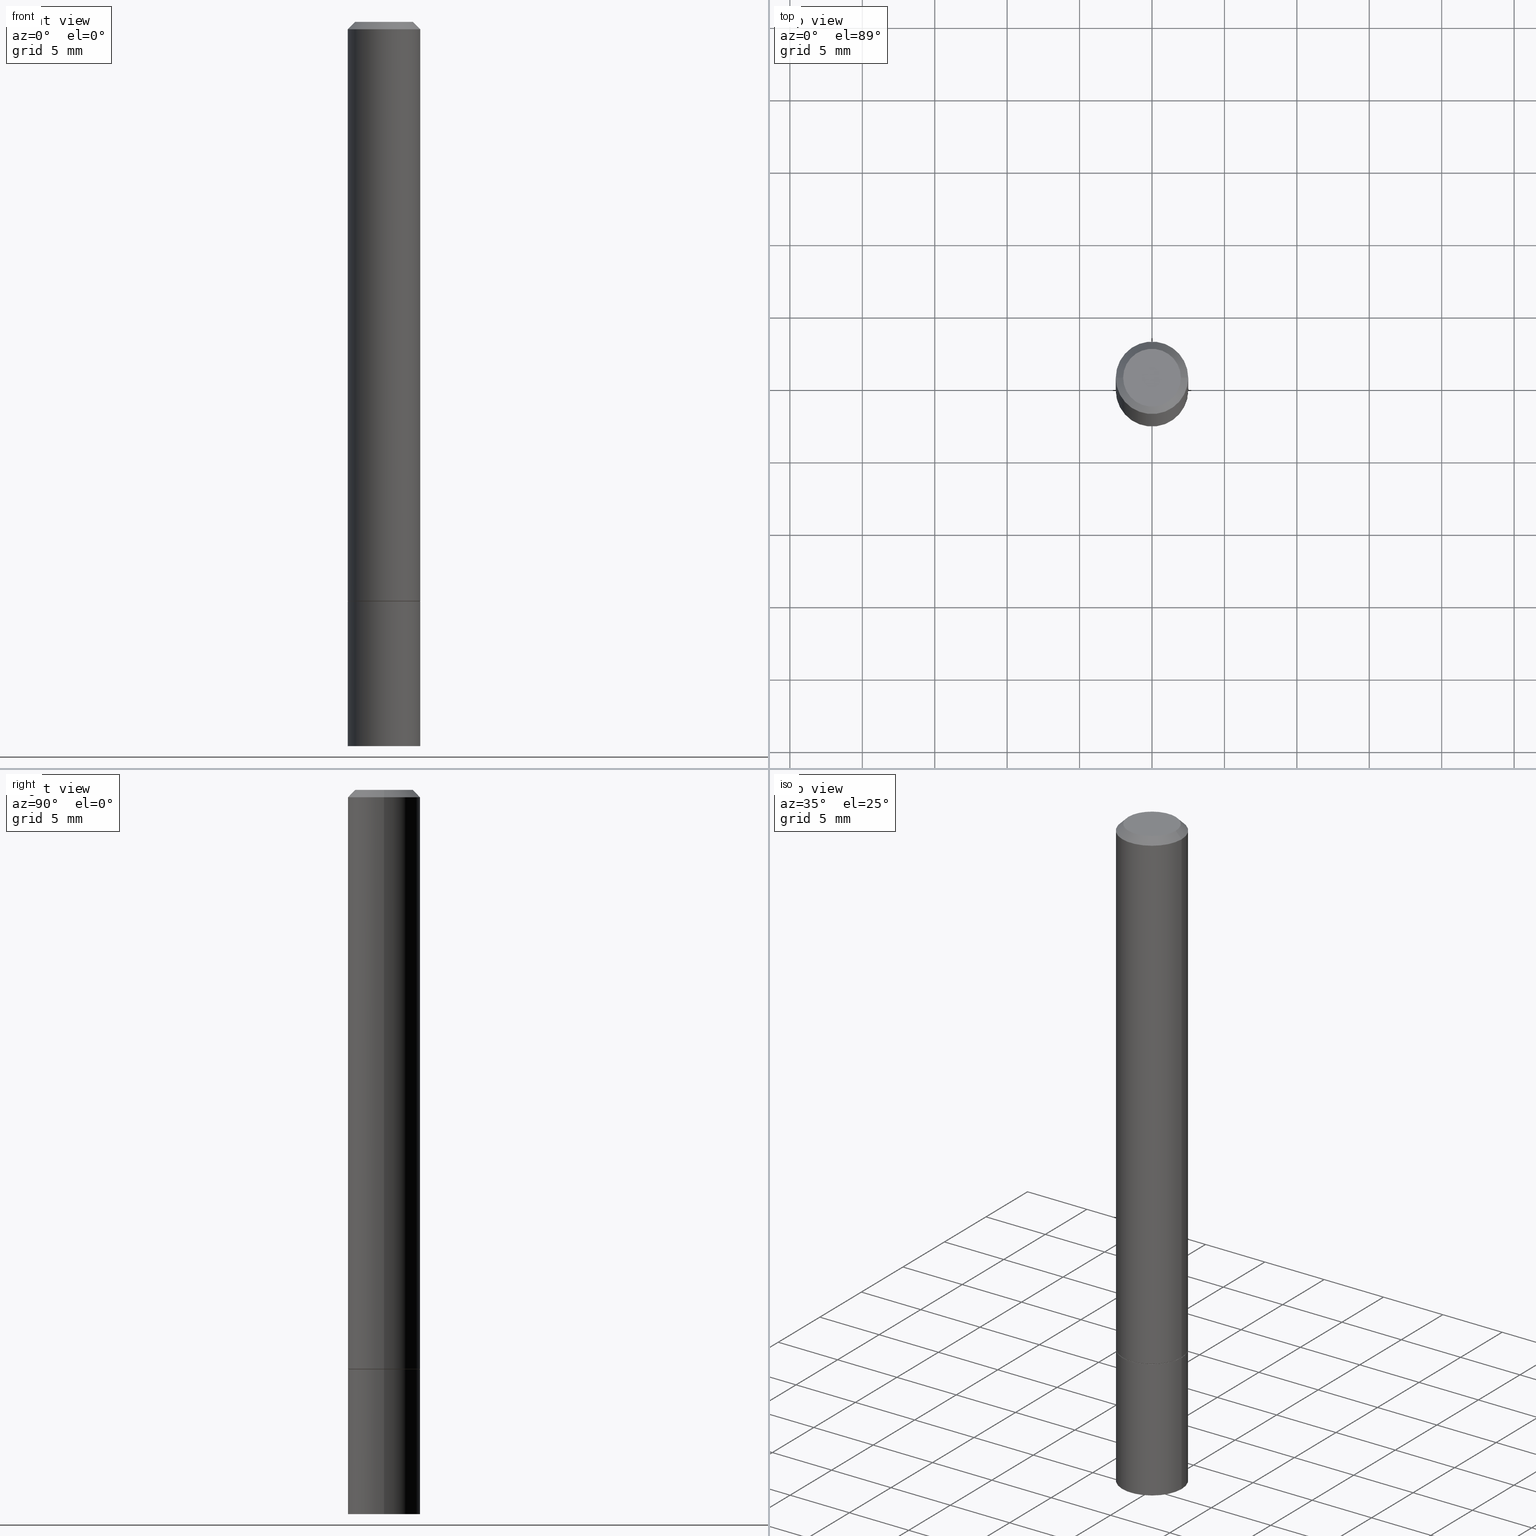
[diagram: canonical four-view strip — front | top / right | iso, engineering-drawing reading convention]
A machine part, canonical four-view strip (front | top / right | iso — engineering-drawing reading convention). The complete STEP part file that produces these views, byte-faithful:
ISO-10303-21;
HEADER;
FILE_DESCRIPTION (( 'STEP AP203' ),
    '1' );
FILE_NAME ('49144.STEP',
    '2024-02-28T15:52:22',
    ( '' ),
    ( '' ),
    'SwSTEP 2.0',
    'SolidWorks 2023',
    '' );
FILE_SCHEMA (( 'CONFIG_CONTROL_DESIGN' ));
ENDSEC;

DATA;
#1 = ORIENTED_EDGE ( 'NONE', *, *, #351, .F. ) ;
#2 = DIRECTION ( 'NONE',  ( 1.000000000000000000, -6.982962677686265922E-15, 0.000000000000000000 ) ) ;
#3 = PLANE ( 'NONE',  #279 ) ;
#4 = DIRECTION ( 'NONE',  ( 2.438088387897960049E-29, -3.491481338843145188E-15, -1.000000000000000000 ) ) ;
#5 = CIRCLE ( 'NONE', #317, 0.07844999999999982543 ) ;
#6 = EDGE_LOOP ( 'NONE', ( #310, #183, #138, #362 ) ) ;
#7 = DIRECTION ( 'NONE',  ( -1.000000000000000000, 6.982962677686265922E-15, -4.876176775795935793E-29 ) ) ;
#8 = DIRECTION ( 'NONE',  ( 2.445468806185136597E-29, -3.491481338843145583E-15, -1.000000000000000000 ) ) ;
#9 = DATE_TIME_ROLE ( 'creation_date' ) ;
#10 = CONICAL_SURFACE ( 'NONE', #22, 0.09844999999999980156, 0.7853981633974471688 ) ;
#11 = AXIS2_PLACEMENT_3D ( 'NONE', #220, #42, #19 ) ;
#12 = DIRECTION ( 'NONE',  ( 1.000000000000000000, -6.982962677686264344E-15, 0.000000000000000000 ) ) ;
#13 = CARTESIAN_POINT ( 'NONE',  ( 0.000000000000000000, 0.000000000000000000, 0.000000000000000000 ) ) ;
#14 = CARTESIAN_POINT ( 'NONE',  ( 4.890937612370278413E-31, -6.982962677686297772E-17, -0.02000000000000002123 ) ) ;
#15 = EDGE_CURVE ( 'NONE', #285, #82, #278, .T. ) ;
#16 = MECHANICAL_CONTEXT ( 'NONE', #313, 'mechanical' ) ;
#17 = ORIENTED_EDGE ( 'NONE', *, *, #309, .F. ) ;
#18 =( LENGTH_UNIT ( ) NAMED_UNIT ( * ) SI_UNIT ( $, .METRE. ) );
#19 = DIRECTION ( 'NONE',  ( 1.000000000000000000, -6.982962677686266711E-15, 4.876176775795936353E-29 ) ) ;
#20 = APPROVAL_STATUS ( 'not_yet_approved' ) ;
#21 = VERTEX_POINT ( 'NONE', #87 ) ;
#22 = AXIS2_PLACEMENT_3D ( 'NONE', #364, #8, #97 ) ;
#23 = PERSON_AND_ORGANIZATION_ROLE ( 'classification_officer' ) ;
#24 = AXIS2_PLACEMENT_3D ( 'NONE', #186, #47, #273 ) ;
#25 = ORIENTED_EDGE ( 'NONE', *, *, #100, .F. ) ;
#26 = ADVANCED_FACE ( 'NONE', ( #245 ), #10, .T. ) ;
#27 = PLANE ( 'NONE',  #61 ) ;
#28 = PERSON_AND_ORGANIZATION ( #358, #366 ) ;
#29 = CARTESIAN_POINT ( 'NONE',  ( 3.851124275980353356E-29, -5.498384812410186155E-15, -1.574800000000000200 ) ) ;
#30 = APPLICATION_CONTEXT ( 'configuration controlled 3d designs of mechanical parts and assemblies' ) ;
#31 = DIRECTION ( 'NONE',  ( 1.000000000000000000, -6.982962677686265922E-15, 0.000000000000000000 ) ) ;
#32 = VECTOR ( 'NONE', #266, 39.37007874015748143 ) ;
#33 = CARTESIAN_POINT ( 'NONE',  ( -0.09844999999999999585, -2.082832155568282351E-15, -1.573800000000000088 ) ) ;
#34 = EDGE_CURVE ( 'NONE', #112, #235, #303, .T. ) ;
#35 = FACE_OUTER_BOUND ( 'NONE', #148, .T. ) ;
#36 = CARTESIAN_POINT ( 'NONE',  ( -0.09844999999999999585, 6.995293233558186035E-16, -4.842691596355954042E-30 ) ) ;
#37 = DIRECTION ( 'NONE',  ( -2.445468806185136597E-29, 3.491481338843145583E-15, 1.000000000000000000 ) ) ;
#38 = AXIS2_PLACEMENT_3D ( 'NONE', #347, #64, #327 ) ;
#39 = ORIENTED_EDGE ( 'NONE', *, *, #69, .F. ) ;
#40 = APPROVAL ( #219, 'UNSPECIFIED' ) ;
#41 = APPLICATION_PROTOCOL_DEFINITION ( 'international standard', 'config_control_design', 1994, #30 ) ;
#42 = DIRECTION ( 'NONE',  ( -2.445468806185136597E-29, 3.491481338843145583E-15, 1.000000000000000000 ) ) ;
#43 = CONICAL_SURFACE ( 'NONE', #305, 0.09844999999999980156, 0.7853981633974471688 ) ;
#44 =( CONVERSION_BASED_UNIT ( 'INCH', #323 ) LENGTH_UNIT ( ) NAMED_UNIT ( #115 ) );
#45 = CC_DESIGN_PERSON_AND_ORGANIZATION_ASSIGNMENT ( #165, #277, ( #258 ) ) ;
#46 = DIRECTION ( 'NONE',  ( 1.000000000000000000, -6.982962677686266711E-15, 4.876176775795935793E-29 ) ) ;
#47 = DIRECTION ( 'NONE',  ( 0.000000000000000000, 0.000000000000000000, 1.000000000000000000 ) ) ;
#48 = APPROVAL_DATE_TIME ( #329, #163 ) ;
#49 = DIRECTION ( 'NONE',  ( -2.445468806185136597E-29, 3.491481338843145583E-15, 1.000000000000000000 ) ) ;
#50 = CC_DESIGN_APPROVAL ( #40, ( #243 ) ) ;
#51 = COORDINATED_UNIVERSAL_TIME_OFFSET ( 5, 0, .BEHIND. ) ;
#52 = ORIENTED_EDGE ( 'NONE', *, *, #291, .T. ) ;
#53 = PERSON_AND_ORGANIZATION_ROLE ( 'design_supplier' ) ;
#54 = CIRCLE ( 'NONE', #263, 0.09844999999999999585 ) ;
#55 = EDGE_CURVE ( 'NONE', #285, #308, #315, .T. ) ;
#56 = ORIENTED_EDGE ( 'NONE', *, *, #343, .T. ) ;
#57 = CARTESIAN_POINT ( 'NONE',  ( 0.09744999999999999496, -6.178874525350711912E-15, -1.574799999999999756 ) ) ;
#58 = DIRECTION ( 'NONE',  ( -2.445468806185136597E-29, 3.491481338843145583E-15, 1.000000000000000000 ) ) ;
#59 = DIRECTION ( 'NONE',  ( 1.000000000000000000, -6.982962677686265922E-15, 0.000000000000000000 ) ) ;
#60 = ADVANCED_FACE ( 'NONE', ( #141 ), #27, .F. ) ;
#61 = AXIS2_PLACEMENT_3D ( 'NONE', #215, #256, #142 ) ;
#62 = LINE ( 'NONE', #122, #32 ) ;
#63 = LOCAL_TIME ( 10, 52, 22.00000000000000000, #128 ) ;
#64 = DIRECTION ( 'NONE',  ( -2.445468806185136597E-29, 3.491481338843145583E-15, 1.000000000000000000 ) ) ;
#65 = EDGE_LOOP ( 'NONE', ( #176, #80 ) ) ;
#66 = APPROVAL_PERSON_ORGANIZATION ( #133, #40, #131 ) ;
#67 = CC_DESIGN_APPROVAL ( #265, ( #289 ) ) ;
#68 = ORIENTED_EDGE ( 'NONE', *, *, #55, .T. ) ;
#69 = EDGE_CURVE ( 'NONE', #126, #335, #240, .T. ) ;
#70 = APPROVAL_STATUS ( 'not_yet_approved' ) ;
#71 = LINE ( 'NONE', #269, #118 ) ;
#72 = VECTOR ( 'NONE', #181, 39.37007874015748143 ) ;
#73 = LOCAL_TIME ( 10, 52, 22.00000000000000000, #51 ) ;
#74 = FACE_OUTER_BOUND ( 'NONE', #254, .T. ) ;
#75 = CYLINDRICAL_SURFACE ( 'NONE', #171, 0.09844999999999999585 ) ;
#76 = CARTESIAN_POINT ( 'NONE',  ( 3.851124275980352235E-29, -5.498384812410185366E-15, -1.574799999999999756 ) ) ;
#77 = DIRECTION ( 'NONE',  ( 1.000000000000000000, -6.982962677686266711E-15, 4.876176775795936353E-29 ) ) ;
#78 = CARTESIAN_POINT ( 'NONE',  ( 0.09844999999999999585, -7.560453691130944267E-15, -1.968500000000000139 ) ) ;
#79 = CONICAL_SURFACE ( 'NONE', #251, 0.09744999999999999496, 0.7853981633975507526 ) ;
#80 = ORIENTED_EDGE ( 'NONE', *, *, #34, .T. ) ;
#81 = DATE_AND_TIME ( #197, #349 ) ;
#82 = VERTEX_POINT ( 'NONE', #287 ) ;
#83 = EDGE_CURVE ( 'NONE', #235, #112, #223, .T. ) ;
#84 = DATE_TIME_ROLE ( 'classification_date' ) ;
#85 = ORIENTED_EDGE ( 'NONE', *, *, #111, .F. ) ;
#86 = AXIS2_PLACEMENT_3D ( 'NONE', #271, #299, #137 ) ;
#87 = CARTESIAN_POINT ( 'NONE',  ( 0.09844999999999980156, -7.452456546574689274E-16, -0.02000000000000002123 ) ) ;
#88 = ORIENTED_EDGE ( 'NONE', *, *, #178, .T. ) ;
#89 = DIRECTION ( 'NONE',  ( -2.445468806185136597E-29, 3.491481338843145583E-15, 1.000000000000000000 ) ) ;
#90 = ADVANCED_BREP_SHAPE_REPRESENTATION ( '49144', ( #275, #152, #24 ), #337 ) ;
#91 = CYLINDRICAL_SURFACE ( 'NONE', #322, 0.09844999999999991258 ) ;
#92 = CARTESIAN_POINT ( 'NONE',  ( -0.09844999999999999585, -5.486153590605640426E-15, -1.968500000000000139 ) ) ;
#93 = CC_DESIGN_DATE_AND_TIME_ASSIGNMENT ( #81, #84, ( #289 ) ) ;
#94 = DIRECTION ( 'NONE',  ( -2.445468806185136597E-29, 3.491481338843145583E-15, 1.000000000000000000 ) ) ;
#95 =( NAMED_UNIT ( * ) SI_UNIT ( $, .STERADIAN. ) SOLID_ANGLE_UNIT ( ) );
#96 = APPROVAL_PERSON_ORGANIZATION ( #161, #163, #300 ) ;
#97 = DIRECTION ( 'NONE',  ( -1.000000000000000000, 6.982962677686266711E-15, 0.000000000000000000 ) ) ;
#98 = UNCERTAINTY_MEASURE_WITH_UNIT (LENGTH_MEASURE( 1.000000000000000082E-05 ), #44, 'distance_accuracy_value', 'NONE');
#99 = DIRECTION ( 'NONE',  ( -2.445468806185136597E-29, 3.491481338843145583E-15, 1.000000000000000000 ) ) ;
#100 = EDGE_CURVE ( 'NONE', #306, #127, #54, .T. ) ;
#101 = DIRECTION ( 'NONE',  ( -1.000000000000000000, 6.982962677686266711E-15, 0.000000000000000000 ) ) ;
#102 = CALENDAR_DATE ( 2024, 28, 2 ) ;
#103 = CARTESIAN_POINT ( 'NONE',  ( 3.851124275980352235E-29, -5.498384812410185366E-15, -1.574799999999999756 ) ) ;
#104 = AXIS2_PLACEMENT_3D ( 'NONE', #174, #348, #290 ) ;
#105 = CIRCLE ( 'NONE', #297, 0.09844999999999980156 ) ;
#106 = ORIENTED_EDGE ( 'NONE', *, *, #34, .F. ) ;
#107 = VERTEX_POINT ( 'NONE', #33 ) ;
#108 = VECTOR ( 'NONE', #320, 39.37007874015748143 ) ;
#109 = AXIS2_PLACEMENT_3D ( 'NONE', #103, #224, #227 ) ;
#110 = ORIENTED_EDGE ( 'NONE', *, *, #15, .F. ) ;
#111 = EDGE_CURVE ( 'NONE', #308, #21, #191, .T. ) ;
#112 = VERTEX_POINT ( 'NONE', #353 ) ;
#113 = PERSON_AND_ORGANIZATION ( #358, #366 ) ;
#114 = ORIENTED_EDGE ( 'NONE', *, *, #55, .F. ) ;
#115 = DIMENSIONAL_EXPONENTS ( 1.000000000000000000, 0.000000000000000000, 0.000000000000000000, 0.000000000000000000, 0.000000000000000000, 0.000000000000000000, 0.000000000000000000 ) ;
#116 = ORIENTED_EDGE ( 'NONE', *, *, #231, .F. ) ;
#117 = AXIS2_PLACEMENT_3D ( 'NONE', #292, #58, #147 ) ;
#118 = VECTOR ( 'NONE', #247, 39.37007874015748143 ) ;
#119 = ORIENTED_EDGE ( 'NONE', *, *, #178, .F. ) ;
#120 = CARTESIAN_POINT ( 'NONE',  ( 5.478134220644863581E-16, 0.07844999999999982543, -2.739067110322441651E-16 ) ) ;
#121 = ADVANCED_FACE ( 'NONE', ( #249 ), #166, .T. ) ;
#122 = CARTESIAN_POINT ( 'NONE',  ( 0.09844999999999980156, -7.452456546574689274E-16, -0.02000000000000002123 ) ) ;
#123 = DIRECTION ( 'NONE',  ( -2.445468806185136597E-29, 3.491481338843145583E-15, 1.000000000000000000 ) ) ;
#124 = ADVANCED_FACE ( 'NONE', ( #298 ), #43, .T. ) ;
#125 = CARTESIAN_POINT ( 'NONE',  ( -0.09744999999999999496, -4.805960916411968264E-15, -1.574799999999999756 ) ) ;
#126 = VERTEX_POINT ( 'NONE', #160 ) ;
#127 = VERTEX_POINT ( 'NONE', #78 ) ;
#128 = COORDINATED_UNIVERSAL_TIME_OFFSET ( 5, 0, .BEHIND. ) ;
#129 = EDGE_CURVE ( 'NONE', #127, #235, #71, .T. ) ;
#130 = APPROVAL_PERSON_ORGANIZATION ( #304, #265, #143 ) ;
#131 = APPROVAL_ROLE ( '' ) ;
#132 = DIRECTION ( 'NONE',  ( -2.445468806185136597E-29, 3.491481338843145583E-15, 1.000000000000000000 ) ) ;
#133 = PERSON_AND_ORGANIZATION ( #358, #366 ) ;
#134 = LINE ( 'NONE', #272, #182 ) ;
#135 = AXIS2_PLACEMENT_3D ( 'NONE', #288, #123, #31 ) ;
#136 = CC_DESIGN_DATE_AND_TIME_ASSIGNMENT ( #222, #9, ( #243 ) ) ;
#137 = DIRECTION ( 'NONE',  ( 1.000000000000000000, -6.982962677686265922E-15, 0.000000000000000000 ) ) ;
#138 = ORIENTED_EDGE ( 'NONE', *, *, #139, .T. ) ;
#139 = EDGE_CURVE ( 'NONE', #335, #201, #134, .T. ) ;
#140 = AXIS2_PLACEMENT_3D ( 'NONE', #13, #325, #46 ) ;
#141 = FACE_OUTER_BOUND ( 'NONE', #331, .T. ) ;
#142 = DIRECTION ( 'NONE',  ( 1.000000000000000000, -6.982962677686265922E-15, 4.876176775795935793E-29 ) ) ;
#143 = APPROVAL_ROLE ( '' ) ;
#144 = DIRECTION ( 'NONE',  ( -2.445468806185136597E-29, 3.491481338843145583E-15, 1.000000000000000000 ) ) ;
#145 = AXIS2_PLACEMENT_3D ( 'NONE', #153, #341, #318 ) ;
#146 = PRODUCT_RELATED_PRODUCT_CATEGORY ( 'detail', '', ( #216 ) ) ;
#147 = DIRECTION ( 'NONE',  ( 1.000000000000000000, -6.982962677686264344E-15, 0.000000000000000000 ) ) ;
#148 = EDGE_LOOP ( 'NONE', ( #338, #196, #116, #114 ) ) ;
#149 = CARTESIAN_POINT ( 'NONE',  ( 0.09844999999999999585, -6.185857488028398715E-15, -1.574800000000000200 ) ) ;
#150 = CARTESIAN_POINT ( 'NONE',  ( 3.848678807174168313E-29, -5.494893331071342359E-15, -1.573800000000000088 ) ) ;
#151 = ADVANCED_FACE ( 'NONE', ( #250 ), #162, .T. ) ;
#152 = MANIFOLD_SOLID_BREP ( 'Body-Move/Copy2[2]', #365 ) ;
#153 = CARTESIAN_POINT ( 'NONE',  ( 6.874726756182609764E-16, 0.09844999999999311247, -1.968500000000000361 ) ) ;
#154 = EDGE_LOOP ( 'NONE', ( #295, #199, #267, #257 ) ) ;
#155 = COORDINATED_UNIVERSAL_TIME_OFFSET ( 5, 0, .BEHIND. ) ;
#156 = CC_DESIGN_PERSON_AND_ORGANIZATION_ASSIGNMENT ( #350, #326, ( #243 ) ) ;
#157 = APPLICATION_PROTOCOL_DEFINITION ( 'international standard', 'config_control_design', 1994, #313 ) ;
#158 = CC_DESIGN_APPROVAL ( #163, ( #258 ) ) ;
#159 = CARTESIAN_POINT ( 'NONE',  ( 4.890937612370278413E-31, -6.982962677686297772E-17, -0.02000000000000002123 ) ) ;
#160 = CARTESIAN_POINT ( 'NONE',  ( 0.07844999999999982543, -6.417258612913221441E-16, 4.159044147803931210E-30 ) ) ;
#161 = PERSON_AND_ORGANIZATION ( #358, #366 ) ;
#162 = CYLINDRICAL_SURFACE ( 'NONE', #140, 0.09844999999999991258 ) ;
#163 = APPROVAL ( #70, 'UNSPECIFIED' ) ;
#164 = EDGE_LOOP ( 'NONE', ( #359, #172, #233, #85 ) ) ;
#165 = PERSON_AND_ORGANIZATION ( #358, #366 ) ;
#166 = CYLINDRICAL_SURFACE ( 'NONE', #11, 0.09844999999999999585 ) ;
#167 = CIRCLE ( 'NONE', #38, 0.09844999999999980156 ) ;
#168 = PRODUCT_DEFINITION_SHAPE ( 'NONE', 'NONE',  #243 ) ;
#169 = CC_DESIGN_PERSON_AND_ORGANIZATION_ASSIGNMENT ( #113, #23, ( #289 ) ) ;
#170 = ORIENTED_EDGE ( 'NONE', *, *, #111, .T. ) ;
#171 = AXIS2_PLACEMENT_3D ( 'NONE', #330, #49, #77 ) ;
#172 = ORIENTED_EDGE ( 'NONE', *, *, #190, .T. ) ;
#173 = EDGE_LOOP ( 'NONE', ( #39, #236, #56, #346 ) ) ;
#174 = CARTESIAN_POINT ( 'NONE',  ( 0.000000000000000000, 0.000000000000000000, 0.000000000000000000 ) ) ;
#175 = PLANE ( 'NONE',  #246 ) ;
#176 = ORIENTED_EDGE ( 'NONE', *, *, #83, .T. ) ;
#177 = CIRCLE ( 'NONE', #361, 0.09844999999999999585 ) ;
#178 = EDGE_CURVE ( 'NONE', #82, #285, #200, .T. ) ;
#179 = DIRECTION ( 'NONE',  ( -1.000000000000000000, 6.982962677686265922E-15, -4.876176775795935793E-29 ) ) ;
#180 = FACE_OUTER_BOUND ( 'NONE', #228, .T. ) ;
#181 = DIRECTION ( 'NONE',  ( -2.445468806185136877E-29, 3.491481338843145188E-15, 1.000000000000000000 ) ) ;
#182 = VECTOR ( 'NONE', #188, 39.37007874015748143 ) ;
#183 = ORIENTED_EDGE ( 'NONE', *, *, #294, .F. ) ;
#184 = ORIENTED_EDGE ( 'NONE', *, *, #207, .F. ) ;
#185 = ADVANCED_FACE ( 'NONE', ( #328 ), #75, .T. ) ;
#186 = CARTESIAN_POINT ( 'NONE',  ( 0.000000000000000000, 0.000000000000000000, 0.000000000000000000 ) ) ;
#187 = AXIS2_PLACEMENT_3D ( 'NONE', #286, #94, #211 ) ;
#188 = DIRECTION ( 'NONE',  ( -0.7071067811865466846, 2.468850131082247989E-15, -0.7071067811865483499 ) ) ;
#189 = CARTESIAN_POINT ( 'NONE',  ( -0.07844999999999982543, 5.827282354529176128E-16, -3.953055038153092165E-30 ) ) ;
#190 = EDGE_CURVE ( 'NONE', #107, #201, #193, .T. ) ;
#191 = LINE ( 'NONE', #355, #208 ) ;
#192 = PERSON_AND_ORGANIZATION_ROLE ( 'design_owner' ) ;
#193 = LINE ( 'NONE', #301, #230 ) ;
#194 = DATE_AND_TIME ( #307, #73 ) ;
#195 = AXIS2_PLACEMENT_3D ( 'NONE', #29, #144, #324 ) ;
#196 = ORIENTED_EDGE ( 'NONE', *, *, #309, .T. ) ;
#197 = CALENDAR_DATE ( 2024, 28, 2 ) ;
#198 = EDGE_LOOP ( 'NONE', ( #363, #52, #170, #314 ) ) ;
#199 = ORIENTED_EDGE ( 'NONE', *, *, #207, .T. ) ;
#200 = CIRCLE ( 'NONE', #109, 0.09744999999999999496 ) ;
#201 = VERTEX_POINT ( 'NONE', #311 ) ;
#202 = ADVANCED_FACE ( 'NONE', ( #35 ), #213, .T. ) ;
#203 = DIRECTION ( 'NONE',  ( 1.000000000000000000, -6.982962677686265922E-15, 0.000000000000000000 ) ) ;
#204 = FACE_OUTER_BOUND ( 'NONE', #242, .T. ) ;
#205 = CARTESIAN_POINT ( 'NONE',  ( 4.813905344975441835E-29, -6.872981015512731707E-15, -1.968500000000000139 ) ) ;
#206 = FACE_OUTER_BOUND ( 'NONE', #198, .T. ) ;
#207 = EDGE_CURVE ( 'NONE', #306, #112, #244, .T. ) ;
#208 = VECTOR ( 'NONE', #332, 39.37007874015748143 ) ;
#209 = CARTESIAN_POINT ( 'NONE',  ( 0.000000000000000000, 0.000000000000000000, 0.000000000000000000 ) ) ;
#210 = CARTESIAN_POINT ( 'NONE',  ( 0.09744999999999999496, -6.178874525350711912E-15, -1.574799999999999756 ) ) ;
#211 = DIRECTION ( 'NONE',  ( 1.000000000000000000, -6.982962677686264344E-15, 0.000000000000000000 ) ) ;
#212 = CLOSED_SHELL ( 'NONE', ( #185, #221, #255, #121 ) ) ;
#213 = CONICAL_SURFACE ( 'NONE', #117, 0.09744999999999999496, 0.7853981633975507526 ) ;
#214 =( NAMED_UNIT ( * ) PLANE_ANGLE_UNIT ( ) SI_UNIT ( $, .RADIAN. ) );
#215 = CARTESIAN_POINT ( 'NONE',  ( 3.851124275980352235E-29, -5.498384812410185366E-15, -1.574799999999999756 ) ) ;
#216 = PRODUCT ( '49144', '49144', '', ( #16 ) ) ;
#217 = APPROVAL_DATE_TIME ( #248, #40 ) ;
#218 = DIRECTION ( 'NONE',  ( 2.445468806185136597E-29, -3.491481338843145583E-15, -1.000000000000000000 ) ) ;
#219 = APPROVAL_STATUS ( 'not_yet_approved' ) ;
#220 = CARTESIAN_POINT ( 'NONE',  ( 0.000000000000000000, 0.000000000000000000, 0.000000000000000000 ) ) ;
#221 = ADVANCED_FACE ( 'NONE', ( #180 ), #260, .T. ) ;
#222 = DATE_AND_TIME ( #268, #63 ) ;
#223 = CIRCLE ( 'NONE', #195, 0.09844999999999999585 ) ;
#224 = DIRECTION ( 'NONE',  ( -2.445468806185136597E-29, 3.491481338843145583E-15, 1.000000000000000000 ) ) ;
#225 = DESIGN_CONTEXT ( 'detailed design', #30, 'design' ) ;
#226 = CALENDAR_DATE ( 2024, 28, 2 ) ;
#227 = DIRECTION ( 'NONE',  ( 1.000000000000000000, -6.982962677686264344E-15, 0.000000000000000000 ) ) ;
#228 = EDGE_LOOP ( 'NONE', ( #1, #25 ) ) ;
#229 = AXIS2_PLACEMENT_3D ( 'NONE', #259, #261, #203 ) ;
#230 = VECTOR ( 'NONE', #280, 39.37007874015748143 ) ;
#231 = EDGE_CURVE ( 'NONE', #308, #107, #177, .T. ) ;
#232 = SHAPE_DEFINITION_REPRESENTATION ( #168, #90 ) ;
#233 = ORIENTED_EDGE ( 'NONE', *, *, #343, .F. ) ;
#234 = EDGE_CURVE ( 'NONE', #126, #21, #62, .T. ) ;
#235 = VERTEX_POINT ( 'NONE', #149 ) ;
#236 = ORIENTED_EDGE ( 'NONE', *, *, #234, .T. ) ;
#237 = CARTESIAN_POINT ( 'NONE',  ( 6.874726756182513129E-16, 0.09844999999999450024, -1.574800000000000422 ) ) ;
#238 = ADVANCED_FACE ( 'NONE', ( #204 ), #175, .F. ) ;
#239 = CARTESIAN_POINT ( 'NONE',  ( 0.000000000000000000, 0.000000000000000000, 0.000000000000000000 ) ) ;
#240 = CIRCLE ( 'NONE', #104, 0.07844999999999982543 ) ;
#241 = DIRECTION ( 'NONE',  ( 1.000000000000000000, -6.982962677686265922E-15, 4.876176775795936914E-29 ) ) ;
#242 = EDGE_LOOP ( 'NONE', ( #276, #357 ) ) ;
#243 = PRODUCT_DEFINITION ( 'UNKNOWN', '', #258, #225 ) ;
#244 = LINE ( 'NONE', #36, #72 ) ;
#245 = FACE_OUTER_BOUND ( 'NONE', #6, .T. ) ;
#246 = AXIS2_PLACEMENT_3D ( 'NONE', #120, #262, #7 ) ;
#247 = DIRECTION ( 'NONE',  ( -2.445468806185136877E-29, 3.491481338843145188E-15, 1.000000000000000000 ) ) ;
#248 = DATE_AND_TIME ( #102, #284 ) ;
#249 = FACE_OUTER_BOUND ( 'NONE', #253, .T. ) ;
#250 = FACE_OUTER_BOUND ( 'NONE', #164, .T. ) ;
#251 = AXIS2_PLACEMENT_3D ( 'NONE', #76, #132, #12 ) ;
#252 = ORIENTED_EDGE ( 'NONE', *, *, #100, .T. ) ;
#253 = EDGE_LOOP ( 'NONE', ( #184, #252, #296, #106 ) ) ;
#254 = EDGE_LOOP ( 'NONE', ( #17, #88, #68, #339 ) ) ;
#255 = ADVANCED_FACE ( 'NONE', ( #340 ), #3, .F. ) ;
#256 = DIRECTION ( 'NONE',  ( -2.438088387897960049E-29, 3.491481338843145188E-15, 1.000000000000000000 ) ) ;
#257 = ORIENTED_EDGE ( 'NONE', *, *, #129, .F. ) ;
#258 = PRODUCT_DEFINITION_FORMATION_WITH_SPECIFIED_SOURCE ( 'ANY', '', #216, .NOT_KNOWN. ) ;
#259 = CARTESIAN_POINT ( 'NONE',  ( 3.851124275980353356E-29, -5.498384812410186155E-15, -1.574800000000000200 ) ) ;
#260 = PLANE ( 'NONE',  #145 ) ;
#261 = DIRECTION ( 'NONE',  ( -2.445468806185136597E-29, 3.491481338843145583E-15, 1.000000000000000000 ) ) ;
#262 = DIRECTION ( 'NONE',  ( 2.438088387897960049E-29, -3.491481338843145188E-15, -1.000000000000000000 ) ) ;
#263 = AXIS2_PLACEMENT_3D ( 'NONE', #205, #316, #59 ) ;
#264 = LINE ( 'NONE', #125, #321 ) ;
#265 = APPROVAL ( #20, 'UNSPECIFIED' ) ;
#266 = DIRECTION ( 'NONE',  ( 0.7071067811865466846, -7.319954787623252890E-15, -0.7071067811865483499 ) ) ;
#267 = ORIENTED_EDGE ( 'NONE', *, *, #83, .F. ) ;
#268 = CALENDAR_DATE ( 2024, 28, 2 ) ;
#269 = CARTESIAN_POINT ( 'NONE',  ( 0.09844999999999999585, -6.874726756182129545E-16, 4.800596035771099214E-30 ) ) ;
#270 = LOCAL_TIME ( 10, 52, 22.00000000000000000, #274 ) ;
#271 = CARTESIAN_POINT ( 'NONE',  ( 4.813905344975441835E-29, -6.872981015512731707E-15, -1.968500000000000139 ) ) ;
#272 = CARTESIAN_POINT ( 'NONE',  ( -0.09844999999999980156, 6.176430488413486702E-16, -0.02000000000000002123 ) ) ;
#273 = DIRECTION ( 'NONE',  ( 1.000000000000000000, 0.000000000000000000, 0.000000000000000000 ) ) ;
#274 = COORDINATED_UNIVERSAL_TIME_OFFSET ( 5, 0, .BEHIND. ) ;
#275 = MANIFOLD_SOLID_BREP ( 'Body-Move/Copy2[1]', #212 ) ;
#276 = ORIENTED_EDGE ( 'NONE', *, *, #294, .T. ) ;
#277 = PERSON_AND_ORGANIZATION_ROLE ( 'creator' ) ;
#278 = CIRCLE ( 'NONE', #187, 0.09744999999999999496 ) ;
#279 = AXIS2_PLACEMENT_3D ( 'NONE', #237, #4, #179 ) ;
#280 = DIRECTION ( 'NONE',  ( -2.445468806185136877E-29, 3.491481338843145188E-15, 1.000000000000000000 ) ) ;
#281 = CC_DESIGN_SECURITY_CLASSIFICATION ( #289, ( #258 ) ) ;
#282 = APPROVAL_DATE_TIME ( #194, #265 ) ;
#283 = CC_DESIGN_PERSON_AND_ORGANIZATION_ASSIGNMENT ( #28, #53, ( #258 ) ) ;
#284 = LOCAL_TIME ( 10, 52, 22.00000000000000000, #155 ) ;
#285 = VERTEX_POINT ( 'NONE', #210 ) ;
#286 = CARTESIAN_POINT ( 'NONE',  ( 3.851124275980352235E-29, -5.498384812410185366E-15, -1.574799999999999756 ) ) ;
#287 = CARTESIAN_POINT ( 'NONE',  ( -0.09744999999999999496, -4.800662462063745861E-15, -1.574799999999999756 ) ) ;
#288 = CARTESIAN_POINT ( 'NONE',  ( 3.848678807174168313E-29, -5.494893331071342359E-15, -1.573800000000000088 ) ) ;
#289 = SECURITY_CLASSIFICATION ( '', '', #334 ) ;
#290 = DIRECTION ( 'NONE',  ( 1.000000000000000000, -6.982962677686265922E-15, 4.876176775795936914E-29 ) ) ;
#291 = EDGE_CURVE ( 'NONE', #107, #308, #342, .T. ) ;
#292 = CARTESIAN_POINT ( 'NONE',  ( 3.851124275980352235E-29, -5.498384812410185366E-15, -1.574799999999999756 ) ) ;
#293 = CARTESIAN_POINT ( 'NONE',  ( 0.09844999999999999585, -6.182366006689555708E-15, -1.573800000000000088 ) ) ;
#294 = EDGE_CURVE ( 'NONE', #335, #126, #5, .T. ) ;
#295 = ORIENTED_EDGE ( 'NONE', *, *, #351, .T. ) ;
#296 = ORIENTED_EDGE ( 'NONE', *, *, #129, .T. ) ;
#297 = AXIS2_PLACEMENT_3D ( 'NONE', #159, #99, #352 ) ;
#298 = FACE_OUTER_BOUND ( 'NONE', #173, .T. ) ;
#299 = DIRECTION ( 'NONE',  ( -2.445468806185136597E-29, 3.491481338843145583E-15, 1.000000000000000000 ) ) ;
#300 = APPROVAL_ROLE ( '' ) ;
#301 = CARTESIAN_POINT ( 'NONE',  ( -0.09844999999999991258, 6.995293233558180118E-16, -4.842691596355949838E-30 ) ) ;
#302 = ADVANCED_FACE ( 'NONE', ( #206 ), #91, .T. ) ;
#303 = CIRCLE ( 'NONE', #229, 0.09844999999999999585 ) ;
#304 = PERSON_AND_ORGANIZATION ( #358, #366 ) ;
#305 = AXIS2_PLACEMENT_3D ( 'NONE', #14, #218, #101 ) ;
#306 = VERTEX_POINT ( 'NONE', #92 ) ;
#307 = CALENDAR_DATE ( 2024, 28, 2 ) ;
#308 = VERTEX_POINT ( 'NONE', #293 ) ;
#309 = EDGE_CURVE ( 'NONE', #82, #107, #264, .T. ) ;
#310 = ORIENTED_EDGE ( 'NONE', *, *, #234, .F. ) ;
#311 = CARTESIAN_POINT ( 'NONE',  ( -0.09844999999999980156, 6.176430488413486702E-16, -0.02000000000000002123 ) ) ;
#312 = CIRCLE ( 'NONE', #86, 0.09844999999999999585 ) ;
#313 = APPLICATION_CONTEXT ( 'configuration controlled 3d designs of mechanical parts and assemblies' ) ;
#314 = ORIENTED_EDGE ( 'NONE', *, *, #333, .F. ) ;
#315 = LINE ( 'NONE', #57, #108 ) ;
#316 = DIRECTION ( 'NONE',  ( -2.445468806185136597E-29, 3.491481338843145583E-15, 1.000000000000000000 ) ) ;
#317 = AXIS2_PLACEMENT_3D ( 'NONE', #239, #89, #241 ) ;
#318 = DIRECTION ( 'NONE',  ( -1.000000000000000000, 6.982962677686265922E-15, -4.876176775795935793E-29 ) ) ;
#319 = DIRECTION ( 'NONE',  ( -0.7071067811866199593, 7.493145998870616062E-15, 0.7071067811864750752 ) ) ;
#320 = DIRECTION ( 'NONE',  ( 0.7071067811866199593, -2.468850131083015945E-15, 0.7071067811864750752 ) ) ;
#321 = VECTOR ( 'NONE', #319, 39.37007874015748143 ) ;
#322 = AXIS2_PLACEMENT_3D ( 'NONE', #209, #345, #344 ) ;
#323 = LENGTH_MEASURE_WITH_UNIT ( LENGTH_MEASURE( 0.02539999999999999897 ), #18 );
#324 = DIRECTION ( 'NONE',  ( 1.000000000000000000, -6.982962677686265922E-15, 0.000000000000000000 ) ) ;
#325 = DIRECTION ( 'NONE',  ( -2.445468806185136597E-29, 3.491481338843145583E-15, 1.000000000000000000 ) ) ;
#326 = PERSON_AND_ORGANIZATION_ROLE ( 'creator' ) ;
#327 = DIRECTION ( 'NONE',  ( 1.000000000000000000, -6.982962677686266711E-15, 0.000000000000000000 ) ) ;
#328 = FACE_OUTER_BOUND ( 'NONE', #154, .T. ) ;
#329 = DATE_AND_TIME ( #226, #270 ) ;
#330 = CARTESIAN_POINT ( 'NONE',  ( 0.000000000000000000, 0.000000000000000000, 0.000000000000000000 ) ) ;
#331 = EDGE_LOOP ( 'NONE', ( #110, #119 ) ) ;
#332 = DIRECTION ( 'NONE',  ( -2.445468806185136877E-29, 3.491481338843145188E-15, 1.000000000000000000 ) ) ;
#333 = EDGE_CURVE ( 'NONE', #201, #21, #167, .T. ) ;
#334 = SECURITY_CLASSIFICATION_LEVEL ( 'unclassified' ) ;
#335 = VERTEX_POINT ( 'NONE', #189 ) ;
#336 = COORDINATED_UNIVERSAL_TIME_OFFSET ( 5, 0, .BEHIND. ) ;
#337 =( GEOMETRIC_REPRESENTATION_CONTEXT ( 3 ) GLOBAL_UNCERTAINTY_ASSIGNED_CONTEXT ( ( #98 ) ) GLOBAL_UNIT_ASSIGNED_CONTEXT ( ( #44, #214, #95 ) ) REPRESENTATION_CONTEXT ( 'NONE', 'WORKASPACE' ) );
#338 = ORIENTED_EDGE ( 'NONE', *, *, #15, .T. ) ;
#339 = ORIENTED_EDGE ( 'NONE', *, *, #291, .F. ) ;
#340 = FACE_OUTER_BOUND ( 'NONE', #65, .T. ) ;
#341 = DIRECTION ( 'NONE',  ( 2.438088387897960049E-29, -3.491481338843145188E-15, -1.000000000000000000 ) ) ;
#342 = CIRCLE ( 'NONE', #135, 0.09844999999999999585 ) ;
#343 = EDGE_CURVE ( 'NONE', #21, #201, #105, .T. ) ;
#344 = DIRECTION ( 'NONE',  ( 1.000000000000000000, -6.982962677686266711E-15, 4.876176775795935793E-29 ) ) ;
#345 = DIRECTION ( 'NONE',  ( -2.445468806185136597E-29, 3.491481338843145583E-15, 1.000000000000000000 ) ) ;
#346 = ORIENTED_EDGE ( 'NONE', *, *, #139, .F. ) ;
#347 = CARTESIAN_POINT ( 'NONE',  ( 4.890937612370278413E-31, -6.982962677686297772E-17, -0.02000000000000002123 ) ) ;
#348 = DIRECTION ( 'NONE',  ( -2.445468806185136597E-29, 3.491481338843145583E-15, 1.000000000000000000 ) ) ;
#349 = LOCAL_TIME ( 10, 52, 22.00000000000000000, #336 ) ;
#350 = PERSON_AND_ORGANIZATION ( #358, #366 ) ;
#351 = EDGE_CURVE ( 'NONE', #127, #306, #312, .T. ) ;
#352 = DIRECTION ( 'NONE',  ( 1.000000000000000000, -6.982962677686266711E-15, 0.000000000000000000 ) ) ;
#353 = CARTESIAN_POINT ( 'NONE',  ( -0.09844999999999999585, -5.486153590605640426E-15, -1.574800000000000200 ) ) ;
#354 = PERSON_AND_ORGANIZATION ( #358, #366 ) ;
#355 = CARTESIAN_POINT ( 'NONE',  ( 0.09844999999999991258, -6.874726756182123629E-16, 4.800596035771094310E-30 ) ) ;
#356 = ADVANCED_FACE ( 'NONE', ( #74 ), #79, .T. ) ;
#357 = ORIENTED_EDGE ( 'NONE', *, *, #69, .T. ) ;
#358 = PERSON ( 'UNSPECIFIED', 'UNSPECIFIED', 'UNSPECIFIED', ('UNSPECIFIED'), ('UNSPECIFIED'), ('UNSPECIFIED') ) ;
#359 = ORIENTED_EDGE ( 'NONE', *, *, #231, .T. ) ;
#360 = CC_DESIGN_PERSON_AND_ORGANIZATION_ASSIGNMENT ( #354, #192, ( #216 ) ) ;
#361 = AXIS2_PLACEMENT_3D ( 'NONE', #150, #37, #2 ) ;
#362 = ORIENTED_EDGE ( 'NONE', *, *, #333, .T. ) ;
#363 = ORIENTED_EDGE ( 'NONE', *, *, #190, .F. ) ;
#364 = CARTESIAN_POINT ( 'NONE',  ( 4.890937612370278413E-31, -6.982962677686297772E-17, -0.02000000000000002123 ) ) ;
#365 = CLOSED_SHELL ( 'NONE', ( #202, #151, #124, #26, #302, #356, #60, #238 ) ) ;
#366 = ORGANIZATION ( 'UNSPECIFIED', 'UNSPECIFIED', '' ) ;
ENDSEC;
END-ISO-10303-21;
